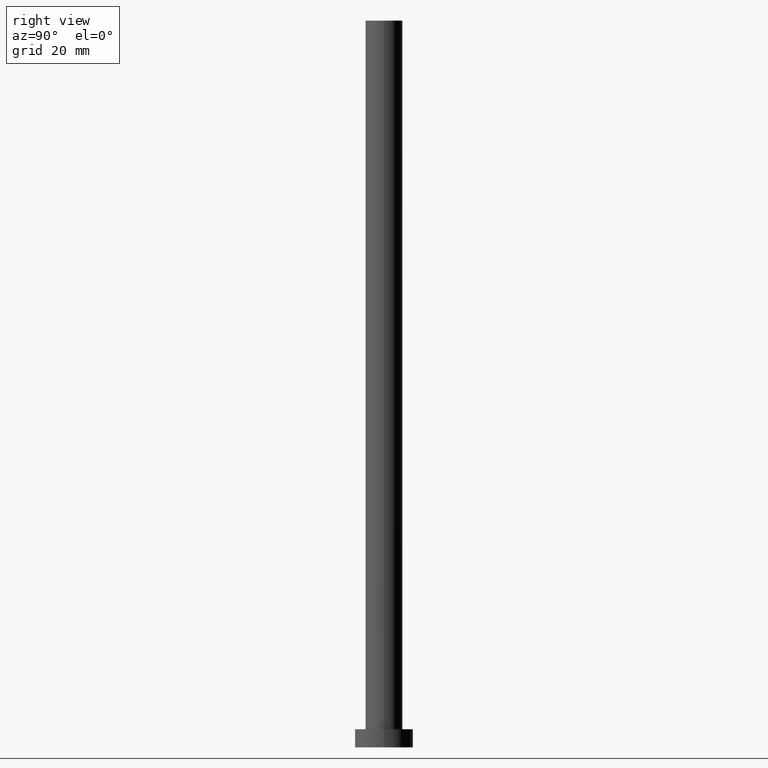
[diagram: clean part render]
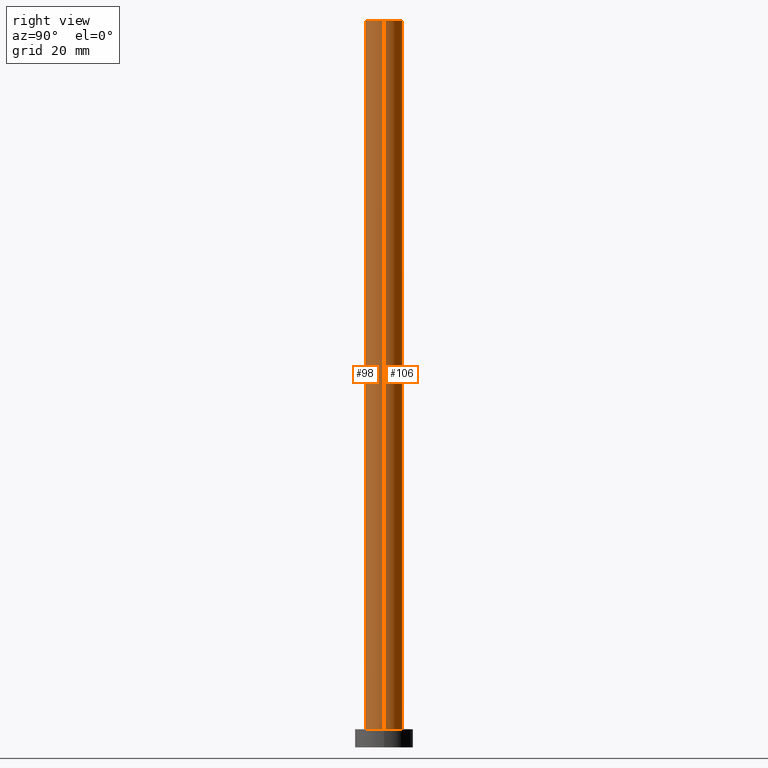
[diagram: same view with one multi-face feature highlighted, each face labeled with its STEP entity id]
A machine part, right view. The highlighted faces form ONE feature: a constant-radius fillet chain: 2 tangent blend faces with common blend radius 5.1 mm. The faces share edges in the B-rep.
Their STEP definitions:
[1] entity #98 (Cylinder):
#1 = CARTESIAN_POINT ( 'NONE',  ( 5.100000000000001421, 6.245698675651502811E-16, 5.000000000000000000 ) ) ;
#20 = VERTEX_POINT ( 'NONE', #132 ) ;
#29 = DIRECTION ( 'NONE',  ( 1.000000000000000000, 0.000000000000000000, 0.000000000000000000 ) ) ;
#30 = CARTESIAN_POINT ( 'NONE',  ( 0.000000000000000000, 0.000000000000000000, 200.0000000000000000 ) ) ;
#36 = LINE ( 'NONE', #217, #189 ) ;
#37 = DIRECTION ( 'NONE',  ( -1.000000000000000000, 0.000000000000000000, 0.000000000000000000 ) ) ;
#42 = DIRECTION ( 'NONE',  ( -0.000000000000000000, -0.000000000000000000, -1.000000000000000000 ) ) ;
#48 = EDGE_CURVE ( 'NONE', #237, #20, #138, .T. ) ;
#50 = VERTEX_POINT ( 'NONE', #1 ) ;
#58 = CARTESIAN_POINT ( 'NONE',  ( -5.100000000000001421, 0.000000000000000000, 5.000000000000000000 ) ) ;
#88 = EDGE_CURVE ( 'NONE', #20, #50, #36, .T. ) ;
#98 = ADVANCED_FACE ( 'NONE', ( #116 ), #157, .T. ) ;
#99 = DIRECTION ( 'NONE',  ( 0.000000000000000000, 0.000000000000000000, 1.000000000000000000 ) ) ;
#105 = ORIENTED_EDGE ( 'NONE', *, *, #226, .T. ) ;
#107 = DIRECTION ( 'NONE',  ( -0.000000000000000000, -0.000000000000000000, -1.000000000000000000 ) ) ;
#110 = ORIENTED_EDGE ( 'NONE', *, *, #88, .F. ) ;
#114 = CARTESIAN_POINT ( 'NONE',  ( -5.100000000000001421, 0.000000000000000000, 200.0000000000000000 ) ) ;
#116 = FACE_OUTER_BOUND ( 'NONE', #120, .T. ) ;
#120 = EDGE_LOOP ( 'NONE', ( #110, #187, #105, #219 ) ) ;
#131 = VERTEX_POINT ( 'NONE', #58 ) ;
#132 = CARTESIAN_POINT ( 'NONE',  ( 5.100000000000001421, 6.245698675651502811E-16, 200.0000000000000000 ) ) ;
#136 = CARTESIAN_POINT ( 'NONE',  ( 0.000000000000000000, 0.000000000000000000, 200.0000000000000000 ) ) ;
#138 = CIRCLE ( 'NONE', #162, 5.100000000000001421 ) ;
#142 = CARTESIAN_POINT ( 'NONE',  ( -5.100000000000001421, 0.000000000000000000, 200.0000000000000000 ) ) ;
#146 = AXIS2_PLACEMENT_3D ( 'NONE', #136, #216, #37 ) ;
#147 = VECTOR ( 'NONE', #42, 1000.000000000000000 ) ;
#157 = CYLINDRICAL_SURFACE ( 'NONE', #146, 5.100000000000001421 ) ;
#160 = DIRECTION ( 'NONE',  ( 1.000000000000000000, 0.000000000000000000, 0.000000000000000000 ) ) ;
#162 = AXIS2_PLACEMENT_3D ( 'NONE', #30, #99, #160 ) ;
#165 = CARTESIAN_POINT ( 'NONE',  ( 0.000000000000000000, 0.000000000000000000, 5.000000000000000000 ) ) ;
#180 = CIRCLE ( 'NONE', #229, 5.100000000000001421 ) ;
#187 = ORIENTED_EDGE ( 'NONE', *, *, #48, .F. ) ;
#189 = VECTOR ( 'NONE', #107, 1000.000000000000000 ) ;
#190 = EDGE_CURVE ( 'NONE', #131, #50, #180, .T. ) ;
#202 = DIRECTION ( 'NONE',  ( 0.000000000000000000, 0.000000000000000000, 1.000000000000000000 ) ) ;
#216 = DIRECTION ( 'NONE',  ( -0.000000000000000000, -0.000000000000000000, -1.000000000000000000 ) ) ;
#217 = CARTESIAN_POINT ( 'NONE',  ( 5.100000000000001421, 6.245698675651502811E-16, 200.0000000000000000 ) ) ;
#219 = ORIENTED_EDGE ( 'NONE', *, *, #190, .T. ) ;
#226 = EDGE_CURVE ( 'NONE', #237, #131, #228, .T. ) ;
#228 = LINE ( 'NONE', #142, #147 ) ;
#229 = AXIS2_PLACEMENT_3D ( 'NONE', #165, #202, #29 ) ;
#237 = VERTEX_POINT ( 'NONE', #114 ) ;
[2] entity #106 (Cylinder):
#1 = CARTESIAN_POINT ( 'NONE',  ( 5.100000000000001421, 6.245698675651502811E-16, 5.000000000000000000 ) ) ;
#9 = CARTESIAN_POINT ( 'NONE',  ( 0.000000000000000000, 0.000000000000000000, 200.0000000000000000 ) ) ;
#12 = DIRECTION ( 'NONE',  ( 0.000000000000000000, 0.000000000000000000, 1.000000000000000000 ) ) ;
#20 = VERTEX_POINT ( 'NONE', #132 ) ;
#23 = FACE_OUTER_BOUND ( 'NONE', #195, .T. ) ;
#36 = LINE ( 'NONE', #217, #189 ) ;
#38 = ORIENTED_EDGE ( 'NONE', *, *, #226, .F. ) ;
#42 = DIRECTION ( 'NONE',  ( -0.000000000000000000, -0.000000000000000000, -1.000000000000000000 ) ) ;
#50 = VERTEX_POINT ( 'NONE', #1 ) ;
#58 = CARTESIAN_POINT ( 'NONE',  ( -5.100000000000001421, 0.000000000000000000, 5.000000000000000000 ) ) ;
#61 = CIRCLE ( 'NONE', #91, 5.100000000000001421 ) ;
#66 = DIRECTION ( 'NONE',  ( 0.000000000000000000, 0.000000000000000000, 1.000000000000000000 ) ) ;
#68 = DIRECTION ( 'NONE',  ( -1.000000000000000000, 0.000000000000000000, 0.000000000000000000 ) ) ;
#78 = CARTESIAN_POINT ( 'NONE',  ( 0.000000000000000000, 0.000000000000000000, 200.0000000000000000 ) ) ;
#83 = CARTESIAN_POINT ( 'NONE',  ( 0.000000000000000000, 0.000000000000000000, 5.000000000000000000 ) ) ;
#84 = DIRECTION ( 'NONE',  ( 1.000000000000000000, 0.000000000000000000, 0.000000000000000000 ) ) ;
#88 = EDGE_CURVE ( 'NONE', #20, #50, #36, .T. ) ;
#91 = AXIS2_PLACEMENT_3D ( 'NONE', #83, #12, #84 ) ;
#93 = CYLINDRICAL_SURFACE ( 'NONE', #185, 5.100000000000001421 ) ;
#95 = ORIENTED_EDGE ( 'NONE', *, *, #169, .T. ) ;
#106 = ADVANCED_FACE ( 'NONE', ( #23 ), #93, .T. ) ;
#107 = DIRECTION ( 'NONE',  ( -0.000000000000000000, -0.000000000000000000, -1.000000000000000000 ) ) ;
#109 = ORIENTED_EDGE ( 'NONE', *, *, #177, .F. ) ;
#114 = CARTESIAN_POINT ( 'NONE',  ( -5.100000000000001421, 0.000000000000000000, 200.0000000000000000 ) ) ;
#131 = VERTEX_POINT ( 'NONE', #58 ) ;
#132 = CARTESIAN_POINT ( 'NONE',  ( 5.100000000000001421, 6.245698675651502811E-16, 200.0000000000000000 ) ) ;
#142 = CARTESIAN_POINT ( 'NONE',  ( -5.100000000000001421, 0.000000000000000000, 200.0000000000000000 ) ) ;
#147 = VECTOR ( 'NONE', #42, 1000.000000000000000 ) ;
#168 = CIRCLE ( 'NONE', #184, 5.100000000000001421 ) ;
#169 = EDGE_CURVE ( 'NONE', #50, #131, #61, .T. ) ;
#177 = EDGE_CURVE ( 'NONE', #20, #237, #168, .T. ) ;
#184 = AXIS2_PLACEMENT_3D ( 'NONE', #9, #66, #222 ) ;
#185 = AXIS2_PLACEMENT_3D ( 'NONE', #78, #206, #68 ) ;
#189 = VECTOR ( 'NONE', #107, 1000.000000000000000 ) ;
#195 = EDGE_LOOP ( 'NONE', ( #109, #213, #95, #38 ) ) ;
#206 = DIRECTION ( 'NONE',  ( -0.000000000000000000, -0.000000000000000000, -1.000000000000000000 ) ) ;
#213 = ORIENTED_EDGE ( 'NONE', *, *, #88, .T. ) ;
#217 = CARTESIAN_POINT ( 'NONE',  ( 5.100000000000001421, 6.245698675651502811E-16, 200.0000000000000000 ) ) ;
#222 = DIRECTION ( 'NONE',  ( 1.000000000000000000, 0.000000000000000000, 0.000000000000000000 ) ) ;
#226 = EDGE_CURVE ( 'NONE', #237, #131, #228, .T. ) ;
#228 = LINE ( 'NONE', #142, #147 ) ;
#237 = VERTEX_POINT ( 'NONE', #114 ) ;